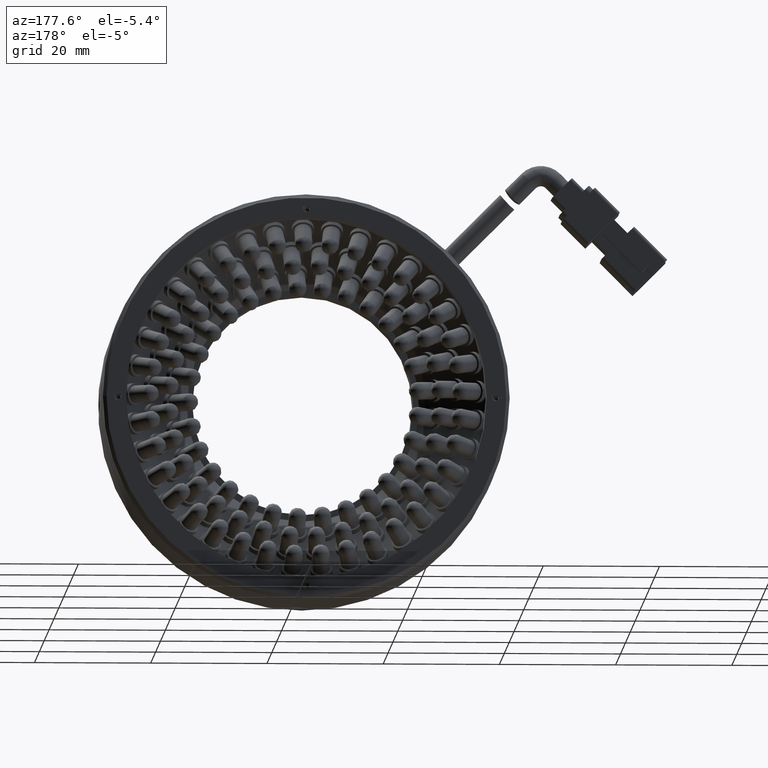
[diagram: clean part render]
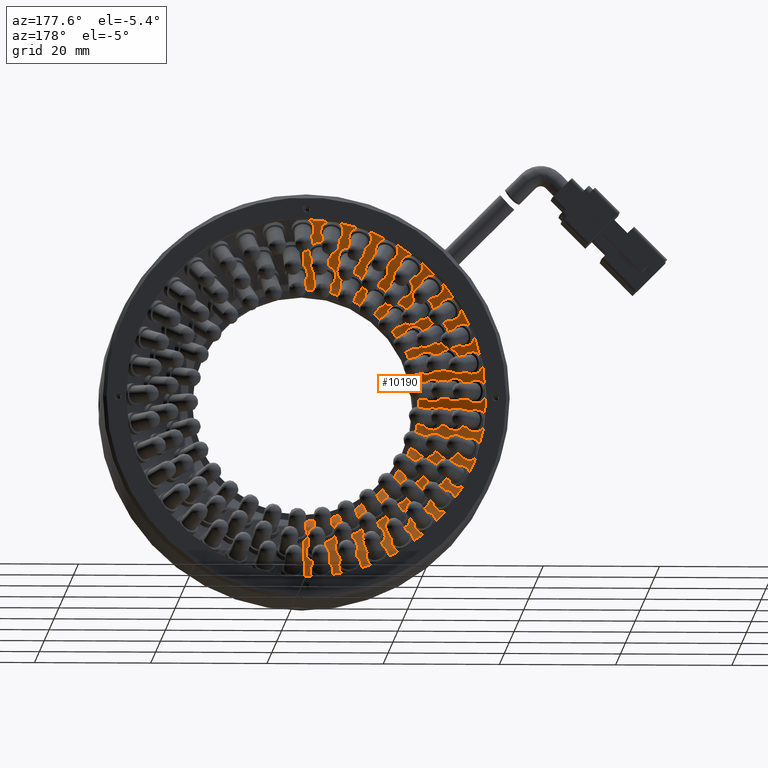
[diagram: same view with one face highlighted and labeled with its STEP entity id]
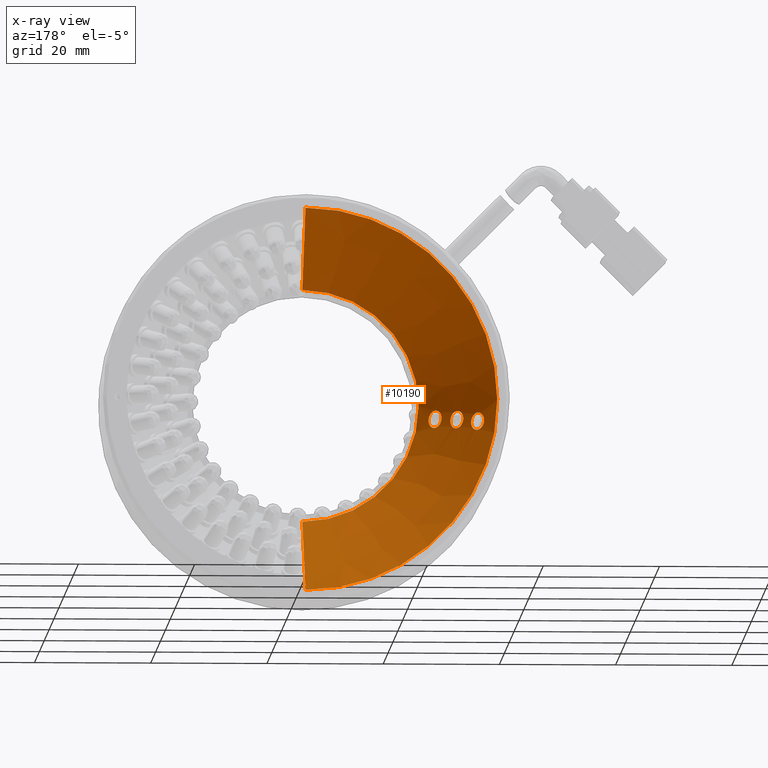
[diagram: x-ray of the same camera — body ghosted, the highlighted face saturated]
A machine part, auxiliary view. The second image highlights one B-rep face of the part: STEP entity #10190.
The next image is the same camera in x-ray: the body ghosted, the highlighted face saturated — about 0% of this face is hidden behind the body in this view.
In plain terms, the highlighted conical surface has half-angle 45 deg.
Its self-contained STEP definition (entity closure, byte-faithful):
#1117 = CARTESIAN_POINT ( 'NONE',  ( -30.09223288798401100, 7.976850201527462000, -2.888808976850003600 ) ) ;
#1168 = FACE_BOUND ( 'NONE', #32541, .T. ) ;
#1710 = CARTESIAN_POINT ( 'NONE',  ( -33.37811794681601900, 11.38641956513504800, -4.121970691507270200 ) ) ;
#1994 = CARTESIAN_POINT ( 'NONE',  ( -31.83871216234416900, 9.956935738828168100, -4.755016390516956000 ) ) ;
#2427 = CARTESIAN_POINT ( 'NONE',  ( -31.40393389580794200, 9.332550256576315200, -3.360580407584973900 ) ) ;
#2659 = CARTESIAN_POINT ( 'NONE',  ( -28.94989392160665200, 6.719374298220328600, -1.391151944788593400 ) ) ;
#2945 = CARTESIAN_POINT ( 'NONE',  ( -30.09223288798401100, 7.976850201527462000, -2.888808976850003600 ) ) ;
#3375 = AXIS2_PLACEMENT_3D ( 'NONE', #29800, #76695, #36542 ) ;
#4058 = CARTESIAN_POINT ( 'NONE',  ( -24.44921119881551200, 2.274871629960953300, -2.015280307594234300 ) ) ;
#4249 = DIRECTION ( 'NONE',  ( 0.0000000000000000000, -1.000000000000000000, 0.0000000000000000000 ) ) ;
#4284 = EDGE_CURVE ( 'NONE', #5049, #68281, #14415, .T. ) ;
#4322 = CARTESIAN_POINT ( 'NONE',  ( -32.66867060039835000, 10.46612088174427100, -1.971797698824531600 ) ) ;
#4337 = CARTESIAN_POINT ( 'NONE',  ( -25.95716323115203700, 3.718217815809340600, -1.150486229931398500 ) ) ;
#4558 = CARTESIAN_POINT ( 'NONE',  ( -26.17263168020944500, 4.162627961578628800, -3.485153052648091200 ) ) ;
#4779 = DIRECTION ( 'NONE',  ( 0.0000000000000000000, -1.000000000000000000, 0.0000000000000000000 ) ) ;
#4842 = CARTESIAN_POINT ( 'NONE',  ( -24.52116903816339600, 2.519247986775215800, -3.415007542213039500 ) ) ;
#5049 = VERTEX_POINT ( 'NONE', #66217 ) ;
#6198 = CARTESIAN_POINT ( 'NONE',  ( -30.01050968042187300, 7.950321185872224000, -3.370755326970311700 ) ) ;
#6494 = CARTESIAN_POINT ( 'NONE',  ( -28.46588625501023300, 6.543867905448771600, -4.231536590790422100 ) ) ;
#7089 = CARTESIAN_POINT ( 'NONE',  ( -2.716071020391490600, 13.44869269134615100, -33.00000000000000700 ) ) ;
#8430 = CARTESIAN_POINT ( 'NONE',  ( -33.25098324583355200, 11.29460363359458500, -4.369993061851015900 ) ) ;
#8738 = CARTESIAN_POINT ( 'NONE',  ( -31.68261638677215300, 9.775874013344935800, -4.585481780741812200 ) ) ;
#9107 = CARTESIAN_POINT ( 'NONE',  ( -27.96455778070088300, 5.861903715666897200, -2.888807865044639400 ) ) ;
#9169 = CARTESIAN_POINT ( 'NONE',  ( -31.45389171925155800, 9.350114011872610900, -3.072333513818881600 ) ) ;
#9383 = CARTESIAN_POINT ( 'NONE',  ( -29.22761975497924800, 6.997207922057613800, -1.400601265777739400 ) ) ;
#10190 = ADVANCED_FACE ( 'NONE', ( #16924, #52475, #1168, #86051 ), #59779, .F. ) ;
#10355 = ORIENTED_EDGE ( 'NONE', *, *, #79427, .T. ) ;
#10808 = CARTESIAN_POINT ( 'NONE',  ( -24.54665320837648300, 2.348978330592371500, -1.747944095574627300 ) ) ;
#11023 = CARTESIAN_POINT ( 'NONE',  ( -26.49751349877059100, 4.360917785284624600, -2.497499267413789700 ) ) ;
#11088 = CARTESIAN_POINT ( 'NONE',  ( -32.86884557506049700, 10.67025964805048200, -2.038232096089959400 ) ) ;
#11103 = CARTESIAN_POINT ( 'NONE',  ( -26.13028914534190500, 3.899245238396602100, -1.305918350379036400 ) ) ;
#11311 = CARTESIAN_POINT ( 'NONE',  ( -25.88142976755217400, 3.923880228889425200, -3.802595145940676600 ) ) ;
#11582 = CARTESIAN_POINT ( 'NONE',  ( -24.37373605373384000, 2.297522132319070200, -2.889108068951709900 ) ) ;
#12668 = EDGE_CURVE ( 'NONE', #46575, #73475, #65890, .T. ) ;
#12936 = CARTESIAN_POINT ( 'NONE',  ( -29.90730625863897200, 7.882010973099663300, -3.637463736922589100 ) ) ;
#13226 = CARTESIAN_POINT ( 'NONE',  ( -28.30007909762012000, 6.355460051159751000, -4.076902001487286300 ) ) ;
#13472 = ORIENTED_EDGE ( 'NONE', *, *, #56004, .T. ) ;
#14415 = B_SPLINE_CURVE_WITH_KNOTS ( 'NONE', 3,
 ( #9107, #42470, #55912, #15855, #62651, #22618, #69370, #29293, #76173, #36050, #82903, #42757, #2659, #49462, #9383, #56199, #16155, #62932, #22893, #69668, #29570, #76462, #36327, #83190, #43022, #2945 ),
 .UNSPECIFIED., .F., .F.,
 ( 4, 2, 2, 2, 2, 2, 2, 2, 2, 2, 2, 2, 4 ),
 ( 0.004689184327643776600, 0.004982258625576380500, 0.005275332923508984300, 0.005568407221441588200, 0.005861481519374192100, 0.006447630115239393700, 0.007033778711104596300, 0.007326853009037197600, 0.007619927306969797100, 0.007913001604902396600, 0.008206075902834997900, 0.008792224498700203900, 0.009378373094565408200 ),
 .UNSPECIFIED. ) ;
#15170 = CARTESIAN_POINT ( 'NONE',  ( -33.03770556966600200, 11.12491966984790400, -4.653224821114847900 ) ) ;
#15461 = CARTESIAN_POINT ( 'NONE',  ( -31.48322650742131800, 9.522131759474037300, -4.212564623681377200 ) ) ;
#15855 = CARTESIAN_POINT ( 'NONE',  ( -28.01908326367941600, 5.874886798443166700, -2.501664204160788600 ) ) ;
#15912 = CARTESIAN_POINT ( 'NONE',  ( -31.54169450870904300, 9.409463013717223500, -2.796130526269787500 ) ) ;
#16155 = CARTESIAN_POINT ( 'NONE',  ( -29.42814202739572600, 7.200999147125463300, -1.467076150657324200 ) ) ;
#16653 = EDGE_LOOP ( 'NONE', ( #32848, #81447 ) ) ;
#16924 = FACE_BOUND ( 'NONE', #45103, .T. ) ;
#17604 = CARTESIAN_POINT ( 'NONE',  ( -24.67742984688036900, 2.461643009922632100, -1.507956543181124600 ) ) ;
#17784 = CIRCLE ( 'NONE', #3375, 33.00000000000000000 ) ;
#17878 = CARTESIAN_POINT ( 'NONE',  ( -33.05541550518000100, 10.86479568739612700, -2.160092470270941000 ) ) ;
#17894 = CARTESIAN_POINT ( 'NONE',  ( -26.32452407231837600, 4.109419223406105100, -1.577599851970052900 ) ) ;
#18092 = CARTESIAN_POINT ( 'NONE',  ( -25.46800741940171900, 3.547881985770746200, -3.990304007584768000 ) ) ;
#18393 = CARTESIAN_POINT ( 'NONE',  ( -24.36981795031816800, 2.245991863775949900, -2.497497769189368700 ) ) ;
#19208 = CARTESIAN_POINT ( 'NONE',  ( -2.716071020391494600, 13.44869269134614600, 33.00000000000000000 ) ) ;
#19708 = CARTESIAN_POINT ( 'NONE',  ( -29.76852888598568500, 7.777388163801131100, -3.876581687967640900 ) ) ;
#19997 = CARTESIAN_POINT ( 'NONE',  ( -28.11756223280062300, 6.133512187233510100, -3.806514765392610100 ) ) ;
#20620 = CARTESIAN_POINT ( 'NONE',  ( -2.716071020391490600, 13.44869269134614600, -33.00000000000000000 ) ) ;
#21059 = ORIENTED_EDGE ( 'NONE', *, *, #32762, .F. ) ;
#21182 = VECTOR ( 'NONE', #39618, 999.9999999999998900 ) ;
#21914 = CARTESIAN_POINT ( 'NONE',  ( -32.64133001116720600, 10.77441666875718300, -4.912981299983012900 ) ) ;
#22220 = CARTESIAN_POINT ( 'NONE',  ( -31.38619482812978500, 9.350408876973169500, -3.656801335355827700 ) ) ;
#22618 = CARTESIAN_POINT ( 'NONE',  ( -28.10567726537878000, 5.935465366437992600, -2.225339834273584800 ) ) ;
#22673 = CARTESIAN_POINT ( 'NONE',  ( -31.66288662371357500, 9.507258990095312600, -2.547418979825386600 ) ) ;
#22893 = CARTESIAN_POINT ( 'NONE',  ( -29.61538702772243800, 7.394853228784978000, -1.589005757616505300 ) ) ;
#24310 = CARTESIAN_POINT ( 'NONE',  ( -24.95243994932467800, 2.716665163038003400, -1.188735715504184400 ) ) ;
#24529 = CARTESIAN_POINT ( 'NONE',  ( -26.49235374372642900, 4.366108627309952100, -2.596330527924044100 ) ) ;
#24592 = CARTESIAN_POINT ( 'NONE',  ( -33.21794150139388100, 11.03938388139246400, -2.330372589065691900 ) ) ;
#24602 = CARTESIAN_POINT ( 'NONE',  ( -26.48899940382902000, 4.314010037575357600, -2.105378886074647000 ) ) ;
#24824 = CARTESIAN_POINT ( 'NONE',  ( -25.18893267097128700, 3.271389174592974400, -3.980705248420320300 ) ) ;
#24826 = VERTEX_POINT ( 'NONE', #66996 ) ;
#26436 = CARTESIAN_POINT ( 'NONE',  ( -29.47841531595618000, 7.537529216597238100, -4.194157209696227200 ) ) ;
#26727 = CARTESIAN_POINT ( 'NONE',  ( -27.96884440991518200, 5.913054303930654700, -3.280442657478248600 ) ) ;
#27403 = EDGE_CURVE ( 'NONE', #82842, #62072, #70913, .T. ) ;
#28239 = EDGE_CURVE ( 'NONE', #82842, #79214, #38955, .T. ) ;
#28365 = CARTESIAN_POINT ( 'NONE',  ( -33.52095258481815400, 11.45822525294419200, -3.558109048436958900 ) ) ;
#28656 = CARTESIAN_POINT ( 'NONE',  ( -32.28861925230100400, 10.43302000739202000, -4.952212459358531000 ) ) ;
#29293 = CARTESIAN_POINT ( 'NONE',  ( -28.22560439056324800, 6.034543310092948000, -1.976512491367817100 ) ) ;
#29355 = CARTESIAN_POINT ( 'NONE',  ( -31.86659738957584100, 9.686567416290762000, -2.263077709976834200 ) ) ;
#29570 = CARTESIAN_POINT ( 'NONE',  ( -29.77883539690149200, 7.568504325954476600, -1.759373894676338600 ) ) ;
#29800 = CARTESIAN_POINT ( 'NONE',  ( -2.716071020391494600, 13.44869269134615100, 0.0000000000000000000 ) ) ;
#30719 = CARTESIAN_POINT ( 'NONE',  ( -24.37547834544265200, 2.240297365366501000, -2.398721525198301800 ) ) ;
#30981 = CARTESIAN_POINT ( 'NONE',  ( -25.35197058306175000, 3.106646915686858400, -0.9994896512752514700 ) ) ;
#31193 = CARTESIAN_POINT ( 'NONE',  ( -26.44189801283231500, 4.349027118801107200, -2.884536115081206100 ) ) ;
#31253 = CARTESIAN_POINT ( 'NONE',  ( -33.42970014969087300, 11.28068057494742000, -2.704729350631603200 ) ) ;
#31264 = CARTESIAN_POINT ( 'NONE',  ( -26.49751349877059100, 4.360917785284624600, -2.497499267413789700 ) ) ;
#31282 = CARTESIAN_POINT ( 'NONE',  ( -2.716071020391494600, 0.4486926913459983200, 20.00000000000001100 ) ) ;
#31477 = CARTESIAN_POINT ( 'NONE',  ( -24.99101462764855000, 3.064966248454909200, -3.914511835946361500 ) ) ;
#31983 = AXIS2_PLACEMENT_3D ( 'NONE', #67610, #48292, #75299 ) ;
#32132 = EDGE_CURVE ( 'NONE', #37473, #62016, #71731, .T. ) ;
#32541 = EDGE_LOOP ( 'NONE', ( #49852, #41802 ) ) ;
#32762 = EDGE_CURVE ( 'NONE', #79214, #37473, #17784, .T. ) ;
#32830 = CARTESIAN_POINT ( 'NONE',  ( -30.09223288798401100, 7.976850201527462000, -2.888808976850003600 ) ) ;
#32848 = ORIENTED_EDGE ( 'NONE', *, *, #71489, .T. ) ;
#33144 = CARTESIAN_POINT ( 'NONE',  ( -29.06601132826993000, 7.160498173152793900, -4.381977731557803700 ) ) ;
#33429 = CARTESIAN_POINT ( 'NONE',  ( -27.96455778070088300, 5.861903715666897200, -2.888807865044639400 ) ) ;
#35103 = CARTESIAN_POINT ( 'NONE',  ( -33.50840356783847800, 11.45706138274978500, -3.655218195600902700 ) ) ;
#35388 = CARTESIAN_POINT ( 'NONE',  ( -32.08485847575766300, 10.22417826652174700, -4.904480023713950300 ) ) ;
#35854 = AXIS2_PLACEMENT_3D ( 'NONE', #44908, #4779, #51646 ) ;
#36050 = CARTESIAN_POINT ( 'NONE',  ( -28.42767393724751600, 6.215501190854329400, -1.692036362559110400 ) ) ;
#36118 = CARTESIAN_POINT ( 'NONE',  ( -32.24993204006149500, 10.05019823280965200, -2.001800619429759300 ) ) ;
#36327 = CARTESIAN_POINT ( 'NONE',  ( -29.99248696055222400, 7.807880282528584500, -2.133910360436776200 ) ) ;
#36542 = DIRECTION ( 'NONE',  ( 0.0000000000000000000, -1.051347561198065000E-016, -1.000000000000000000 ) ) ;
#37473 = VERTEX_POINT ( 'NONE', #79529 ) ;
#37737 = CARTESIAN_POINT ( 'NONE',  ( -25.62969088126097700, 3.384509009095337400, -1.008936631138241900 ) ) ;
#37844 = ORIENTED_EDGE ( 'NONE', *, *, #80315, .T. ) ;
#37949 = CARTESIAN_POINT ( 'NONE',  ( -26.35048835111996400, 4.293285388206882700, -3.160337429953204300 ) ) ;
#38006 = CARTESIAN_POINT ( 'NONE',  ( -33.53748202971131300, 11.44158440760366200, -3.261747144112048200 ) ) ;
#38249 = CARTESIAN_POINT ( 'NONE',  ( -24.80950095616656300, 2.865340244422933200, -3.793204552890478100 ) ) ;
#38955 = LINE ( 'NONE', #19208, #21182 ) ;
#39564 = CARTESIAN_POINT ( 'NONE',  ( -30.08704878579663200, 7.982065453838874400, -2.987634170897629300 ) ) ;
#39618 = DIRECTION ( 'NONE',  ( 0.0000000000000000000, 0.7071067811865515700, 0.7071067811865435800 ) ) ;
#39738 = VECTOR ( 'NONE', #47762, 999.9999999999998900 ) ;
#39849 = CARTESIAN_POINT ( 'NONE',  ( -28.78711698213827600, 6.883844376190436000, -4.372398271905630900 ) ) ;
#41802 = ORIENTED_EDGE ( 'NONE', *, *, #12668, .T. ) ;
#41806 = CARTESIAN_POINT ( 'NONE',  ( -33.44336522947413200, 11.42755711377953500, -3.941097749958742700 ) ) ;
#42096 = CARTESIAN_POINT ( 'NONE',  ( -31.89744508146140900, 10.02246797971766900, -4.801698555922583500 ) ) ;
#42470 = CARTESIAN_POINT ( 'NONE',  ( -27.97017331891063200, 5.856254434929434500, -2.790030023461476500 ) ) ;
#42535 = CARTESIAN_POINT ( 'NONE',  ( -31.41639688171467200, 9.333800737872010700, -3.263461307679371700 ) ) ;
#42757 = CARTESIAN_POINT ( 'NONE',  ( -28.80923263624179100, 6.580914022070942300, -1.430618923767120300 ) ) ;
#42811 = CARTESIAN_POINT ( 'NONE',  ( -32.59865100116816400, 10.39561926039739600, -1.962102465250005900 ) ) ;
#42985 = VERTEX_POINT ( 'NONE', #54661 ) ;
#43022 = CARTESIAN_POINT ( 'NONE',  ( -30.10260110217440800, 7.966419687030017000, -2.691158401637991000 ) ) ;
#44018 = EDGE_LOOP ( 'NONE', ( #71165, #10355, #45015, #21059, #62370 ) ) ;
#44169 = CARTESIAN_POINT ( 'NONE',  ( -24.42429051912432300, 2.259032136276597000, -2.110335868094430200 ) ) ;
#44372 = CARTESIAN_POINT ( 'NONE',  ( -2.716071020391494600, 0.4486926913459983200, 0.0000000000000000000 ) ) ;
#44471 = CARTESIAN_POINT ( 'NONE',  ( -25.83045850150775600, 3.588059454752991600, -1.075440272904947700 ) ) ;
#44608 = CARTESIAN_POINT ( 'NONE',  ( -2.716071020391494600, 13.44869269134615100, 33.00000000000000700 ) ) ;
#44694 = CARTESIAN_POINT ( 'NONE',  ( -26.22326604847269800, 4.201538436257470400, -3.408364970008328500 ) ) ;
#44801 = EDGE_CURVE ( 'NONE', #73475, #46575, #46332, .T. ) ;
#44908 = CARTESIAN_POINT ( 'NONE',  ( -2.716071020391494600, 13.44869269134615100, 0.0000000000000000000 ) ) ;
#44969 = CARTESIAN_POINT ( 'NONE',  ( -24.65394839107752000, 2.683752291482336200, -3.623700201135526400 ) ) ;
#45015 = ORIENTED_EDGE ( 'NONE', *, *, #32132, .F. ) ;
#45103 = EDGE_LOOP ( 'NONE', ( #37844, #13472 ) ) ;
#46307 = CARTESIAN_POINT ( 'NONE',  ( -30.03671900562321900, 7.964861330365146800, -3.275844505291206900 ) ) ;
#46332 = B_SPLINE_CURVE_WITH_KNOTS ( 'NONE', 3,
 ( #68397, #28365, #35103, #81967, #41806, #1710, #48497, #8430, #55250, #15170, #61996, #21914, #68695, #28656, #75508, #35388, #82268, #42096, #1994, #48797, #8738, #55530, #15461, #62292, #22220, #68996 ),
 .UNSPECIFIED., .F., .F.,
 ( 4, 2, 2, 2, 2, 2, 2, 2, 2, 2, 2, 2, 4 ),
 ( 0.0000000000000000000, 0.0002930677184465275800, 0.0005861354368930551500, 0.0008792031553395827300, 0.001172270873786110300, 0.001758406310679151600, 0.002344541747572192900, 0.002637609466018713600, 0.002930677184465234300, 0.003223744902911755100, 0.003516812621358276300, 0.004102948058251315600, 0.004689083495144353600 ),
 .UNSPECIFIED. ) ;
#46575 = VERTEX_POINT ( 'NONE', #56403 ) ;
#46592 = CARTESIAN_POINT ( 'NONE',  ( -28.58905846973035700, 6.677570885727120300, -4.306191921351485900 ) ) ;
#46999 = B_SPLINE_CURVE_WITH_KNOTS ( 'NONE', 3,
 ( #32830, #39564, #86476, #46307, #6198, #53031, #12936, #59755, #19708, #66459, #26436, #73270, #33144, #80055, #39849, #86775, #46592, #6494, #53319, #13226, #60055, #19997, #66757, #26727, #73567, #33429 ),
 .UNSPECIFIED., .F., .F.,
 ( 4, 2, 2, 2, 2, 2, 2, 2, 2, 2, 2, 2, 4 ),
 ( 0.0000000000000000000, 0.0002930740204777339800, 0.0005861480409554679500, 0.0008792220614332018700, 0.001172296081910935900, 0.001758444122866402200, 0.002344592163821868300, 0.002637666184299605400, 0.002930740204777342500, 0.003223814225255079500, 0.003516888245732816600, 0.004103036286688296400, 0.004689184327643776600 ),
 .UNSPECIFIED. ) ;
#47762 = DIRECTION ( 'NONE',  ( 8.659560562354884800E-017, 0.7071067811865515700, -0.7071067811865435800 ) ) ;
#48144 = B_SPLINE_CURVE_WITH_KNOTS ( 'NONE', 3,
 ( #70545, #30719, #84347, #44169, #4058, #50919, #10808, #57628, #17604, #64344, #24310, #71114, #30981, #77921, #37737, #84635, #44471, #4337, #51209, #11103, #57905, #17894, #64630, #24602, #71400, #31264 ),
 .UNSPECIFIED., .F., .F.,
 ( 4, 2, 2, 2, 2, 2, 2, 2, 2, 2, 2, 2, 4 ),
 ( 0.004689342140114963900, 0.004982426383969165400, 0.005275510627823367700, 0.005568594871677569200, 0.005861679115531771500, 0.006447847603240170100, 0.007034016090948568700, 0.007327100334802771900, 0.007620184578656975100, 0.007913268822511178300, 0.008206353066365381500, 0.008792521554073791400, 0.009378690041782199500 ),
 .UNSPECIFIED. ) ;
#48292 = DIRECTION ( 'NONE',  ( -0.0000000000000000000, 1.000000000000000000, 0.0000000000000000000 ) ) ;
#48497 = CARTESIAN_POINT ( 'NONE',  ( -33.33960190663746200, 11.35982591810994800, -4.207730450116234700 ) ) ;
#48797 = CARTESIAN_POINT ( 'NONE',  ( -31.73165729731529400, 9.834024566112598000, -4.647093995641291100 ) ) ;
#49234 = CARTESIAN_POINT ( 'NONE',  ( -31.39802087014657100, 9.338503133164820700, -3.459320768641271500 ) ) ;
#49462 = CARTESIAN_POINT ( 'NONE',  ( -29.15756188453504200, 6.926740690362270100, -1.390899217639858200 ) ) ;
#49771 = AXIS2_PLACEMENT_3D ( 'NONE', #44372, #4249, #51117 ) ;
#49852 = ORIENTED_EDGE ( 'NONE', *, *, #44801, .T. ) ;
#50919 = CARTESIAN_POINT ( 'NONE',  ( -24.51052604647137700, 2.319976694560864000, -1.833969394027679100 ) ) ;
#51117 = DIRECTION ( 'NONE',  ( 0.0000000000000000000, 8.673617379884030500E-017, -1.000000000000000000 ) ) ;
#51200 = CARTESIAN_POINT ( 'NONE',  ( -32.80359125220213900, 10.60327186002500200, -2.009971079422532700 ) ) ;
#51209 = CARTESIAN_POINT ( 'NONE',  ( -26.01815233225255900, 3.781463538590523800, -1.197422366615450200 ) ) ;
#51413 = CARTESIAN_POINT ( 'NONE',  ( -26.00950667302417300, 4.032340823958555200, -3.691548440535417500 ) ) ;
#51646 = DIRECTION ( 'NONE',  ( 0.0000000000000000000, -1.051347561198065000E-016, -1.000000000000000000 ) ) ;
#51710 = CARTESIAN_POINT ( 'NONE',  ( -24.45547532853362700, 2.429129200724346600, -3.250837070625607300 ) ) ;
#52475 = FACE_BOUND ( 'NONE', #16653, .T. ) ;
#53031 = CARTESIAN_POINT ( 'NONE',  ( -29.94565873127809800, 7.908774276029609100, -3.551680886866948900 ) ) ;
#53319 = CARTESIAN_POINT ( 'NONE',  ( -28.40715334708642100, 6.478341933624960800, -4.184845606348783800 ) ) ;
#54661 = CARTESIAN_POINT ( 'NONE',  ( -26.49751349877059100, 4.360917785284624600, -2.497499267413789700 ) ) ;
#55076 = CARTESIAN_POINT ( 'NONE',  ( -2.716071020391491100, 0.4486926913459983200, -20.00000000000001100 ) ) ;
#55250 = CARTESIAN_POINT ( 'NONE',  ( -33.20044632161772600, 11.25559628731189900, -4.446791202640015200 ) ) ;
#55530 = CARTESIAN_POINT ( 'NONE',  ( -31.54927324431512000, 9.611928553604162300, -4.376767390991610700 ) ) ;
#55912 = CARTESIAN_POINT ( 'NONE',  ( -27.98230676668823900, 5.857841108231871100, -2.692872088767890300 ) ) ;
#55979 = CARTESIAN_POINT ( 'NONE',  ( -31.47929963221166700, 9.365454925114827100, -2.977333648339256300 ) ) ;
#56004 = EDGE_CURVE ( 'NONE', #24826, #42985, #48144, .T. ) ;
#56199 = CARTESIAN_POINT ( 'NONE',  ( -29.36273290535496400, 7.134166090478451800, -1.438798172445934400 ) ) ;
#56403 = CARTESIAN_POINT ( 'NONE',  ( -31.39802087014657100, 9.338503133164820700, -3.459320768641271500 ) ) ;
#57546 = LINE ( 'NONE', #20620, #39738 ) ;
#57628 = CARTESIAN_POINT ( 'NONE',  ( -24.62990091865398800, 2.419612432470497500, -1.585083470354783800 ) ) ;
#57892 = CARTESIAN_POINT ( 'NONE',  ( -32.99485252839415500, 10.80110815202430000, -2.113198710938537500 ) ) ;
#57905 = CARTESIAN_POINT ( 'NONE',  ( -26.18217320979669800, 3.954532359199630400, -1.367852594577402500 ) ) ;
#58131 = CARTESIAN_POINT ( 'NONE',  ( -25.61206503944994100, 3.682922923897500800, -3.951209711493576500 ) ) ;
#58405 = CARTESIAN_POINT ( 'NONE',  ( -33.52646239689207900, 11.45267830740728400, -3.459321798819248200 ) ) ;
#58411 = CARTESIAN_POINT ( 'NONE',  ( -24.35849717397845300, 2.257380846601792600, -2.695050014449291700 ) ) ;
#59755 = CARTESIAN_POINT ( 'NONE',  ( -29.81895800242729800, 7.816506824453530700, -3.799767352674809500 ) ) ;
#59779 = CONICAL_SURFACE ( 'NONE', #31983, 33.00000000000000000, 0.7853981633974426200 ) ;
#60055 = CARTESIAN_POINT ( 'NONE',  ( -28.25101924455412600, 6.297332740483542900, -4.015277208791503400 ) ) ;
#61996 = CARTESIAN_POINT ( 'NONE',  ( -32.91001747395823400, 11.01606169976747300, -4.764307066195859100 ) ) ;
#62016 = VERTEX_POINT ( 'NONE', #7089 ) ;
#62072 = VERTEX_POINT ( 'NONE', #55076 ) ;
#62292 = CARTESIAN_POINT ( 'NONE',  ( -31.40127886739067300, 9.390700894051661900, -3.850813661478162100 ) ) ;
#62370 = ORIENTED_EDGE ( 'NONE', *, *, #28239, .F. ) ;
#62651 = CARTESIAN_POINT ( 'NONE',  ( -28.04409788792290600, 5.890628835382852200, -2.406622325281271700 ) ) ;
#62713 = CARTESIAN_POINT ( 'NONE',  ( -31.57840938209541200, 9.437869162553740300, -2.710162073757857600 ) ) ;
#62932 = CARTESIAN_POINT ( 'NONE',  ( -29.55456539434742100, 7.331431839673603800, -1.542087243733474300 ) ) ;
#64344 = CARTESIAN_POINT ( 'NONE',  ( -24.83108706907585600, 2.601443489593826500, -1.300524490698876700 ) ) ;
#64620 = CARTESIAN_POINT ( 'NONE',  ( -33.16659305451251100, 10.98355553334837100, -2.268492541284835400 ) ) ;
#64630 = CARTESIAN_POINT ( 'NONE',  ( -26.39686758757648000, 4.192851270175975900, -1.742501851352672000 ) ) ;
#64833 = CARTESIAN_POINT ( 'NONE',  ( -25.25889069463905300, 3.341963317403056500, -3.990397044369723600 ) ) ;
#65890 = B_SPLINE_CURVE_WITH_KNOTS ( 'NONE', 3,
 ( #49234, #2427, #42535, #9169, #55979, #15912, #62713, #22673, #69434, #29355, #76223, #36118, #82959, #42811, #4322, #51200, #11088, #57892, #17878, #64620, #24592, #71388, #31253, #78196, #38006, #84905 ),
 .UNSPECIFIED., .F., .F.,
 ( 4, 2, 2, 2, 2, 2, 2, 2, 2, 2, 2, 2, 4 ),
 ( 0.004689083495144353600, 0.004982151444206462200, 0.005275219393268570700, 0.005568287342330679300, 0.005861355291392787900, 0.006447491189517016300, 0.007033627087641245600, 0.007326695036703358500, 0.007619762985765471400, 0.007912830934827582600, 0.008205898883889695500, 0.008792034782013923000, 0.009378170680138147100 ),
 .UNSPECIFIED. ) ;
#66217 = CARTESIAN_POINT ( 'NONE',  ( -27.96455778070088300, 5.861903715666897200, -2.888807865044639400 ) ) ;
#66459 = CARTESIAN_POINT ( 'NONE',  ( -29.60603472380911000, 7.646457897672905600, -4.083056202841649300 ) ) ;
#66757 = CARTESIAN_POINT ( 'NONE',  ( -28.05137181699154100, 6.043878077482676600, -3.642280062222721200 ) ) ;
#66996 = CARTESIAN_POINT ( 'NONE',  ( -24.36981795031816800, 2.245991863775949900, -2.497497769189368700 ) ) ;
#67610 = CARTESIAN_POINT ( 'NONE',  ( -2.716071020391494600, 13.44869269134614600, 0.0000000000000000000 ) ) ;
#68281 = VERTEX_POINT ( 'NONE', #1117 ) ;
#68397 = CARTESIAN_POINT ( 'NONE',  ( -33.52646239689207900, 11.45267830740728400, -3.459321798819248200 ) ) ;
#68695 = CARTESIAN_POINT ( 'NONE',  ( -32.49756335515410700, 10.63908910240122700, -4.952098552430085100 ) ) ;
#68996 = CARTESIAN_POINT ( 'NONE',  ( -31.39802087014657100, 9.338503133164820700, -3.459320768641271500 ) ) ;
#69370 = CARTESIAN_POINT ( 'NONE',  ( -28.14197251523002300, 5.964297069803323300, -2.139332251036381000 ) ) ;
#69434 = CARTESIAN_POINT ( 'NONE',  ( -31.71106438712465400, 9.548639603335534100, -2.470347630656525100 ) ) ;
#69668 = CARTESIAN_POINT ( 'NONE',  ( -29.72715424512901400, 7.513012766685523800, -1.697462051795112900 ) ) ;
#70545 = CARTESIAN_POINT ( 'NONE',  ( -24.36981795031816800, 2.245991863775949900, -2.497497769189368700 ) ) ;
#70913 = CIRCLE ( 'NONE', #49771, 20.00000000000001100 ) ;
#71114 = CARTESIAN_POINT ( 'NONE',  ( -25.21151741892331800, 2.967973283796356400, -1.038983867632457400 ) ) ;
#71165 = ORIENTED_EDGE ( 'NONE', *, *, #27403, .T. ) ;
#71333 = CARTESIAN_POINT ( 'NONE',  ( -26.48008095919268700, 4.364661294156624300, -2.693476409665842100 ) ) ;
#71388 = CARTESIAN_POINT ( 'NONE',  ( -33.35857245996034200, 11.19599761252939500, -2.539935526342817200 ) ) ;
#71400 = CARTESIAN_POINT ( 'NONE',  ( -26.50783302153796200, 4.350536088478531100, -2.299836503535559500 ) ) ;
#71489 = EDGE_CURVE ( 'NONE', #68281, #5049, #46999, .T. ) ;
#71630 = CARTESIAN_POINT ( 'NONE',  ( -25.05518007358076800, 3.133054538943564000, -3.942655122749678200 ) ) ;
#71731 = CIRCLE ( 'NONE', #35854, 33.00000000000000000 ) ;
#73270 = CARTESIAN_POINT ( 'NONE',  ( -29.20978600588955500, 7.295822147131579200, -4.342854923332189400 ) ) ;
#73475 = VERTEX_POINT ( 'NONE', #58405 ) ;
#73567 = CARTESIAN_POINT ( 'NONE',  ( -27.95332671491391400, 5.873202266445422200, -3.086363361184057300 ) ) ;
#75299 = DIRECTION ( 'NONE',  ( 0.0000000000000000000, 0.0000000000000000000, 1.000000000000000000 ) ) ;
#75508 = CARTESIAN_POINT ( 'NONE',  ( -32.21867753442303700, 10.36244029600416500, -4.942526104877815700 ) ) ;
#76173 = CARTESIAN_POINT ( 'NONE',  ( -28.27335295307484100, 6.076356030270624800, -1.899405503200367800 ) ) ;
#76223 = CARTESIAN_POINT ( 'NONE',  ( -31.98914546368681400, 9.800598456485412100, -2.151396479206739700 ) ) ;
#76327 = B_SPLINE_CURVE_WITH_KNOTS ( 'NONE', 3,
 ( #11023, #24529, #71333, #31193, #78138, #37949, #84849, #44694, #4558, #51413, #11311, #58131, #18092, #64833, #24824, #71630, #31477, #78410, #38249, #85145, #44969, #4842, #51710, #11582, #58411, #18393 ),
 .UNSPECIFIED., .F., .F.,
 ( 4, 2, 2, 2, 2, 2, 2, 2, 2, 2, 2, 2, 4 ),
 ( 0.0000000000000000000, 0.0002930838837571808000, 0.0005861677675143616000, 0.0008792516512715425000, 0.001172335535028723200, 0.001758503302543091700, 0.002344671070057459400, 0.002637754953814647500, 0.002930838837571836000, 0.003223922721329023600, 0.003517006605086212100, 0.004103174372600587800, 0.004689342140114963900 ),
 .UNSPECIFIED. ) ;
#76462 = CARTESIAN_POINT ( 'NONE',  ( -29.92055609116355400, 7.724019090198884100, -1.969045101210438900 ) ) ;
#76695 = DIRECTION ( 'NONE',  ( 0.0000000000000000000, -1.000000000000000000, 0.0000000000000000000 ) ) ;
#77921 = CARTESIAN_POINT ( 'NONE',  ( -25.55960125826056700, 3.314066646799193700, -0.9992307690275282800 ) ) ;
#78138 = CARTESIAN_POINT ( 'NONE',  ( -26.41559340952226600, 4.334579906286407400, -2.979439700170547900 ) ) ;
#78196 = CARTESIAN_POINT ( 'NONE',  ( -33.51961998943672700, 11.40408856987448200, -3.067409852924995100 ) ) ;
#78410 = CARTESIAN_POINT ( 'NONE',  ( -24.86807297406931400, 2.931022768088019900, -3.839877749889348400 ) ) ;
#79214 = VERTEX_POINT ( 'NONE', #44608 ) ;
#79427 = EDGE_CURVE ( 'NONE', #62072, #62016, #57546, .T. ) ;
#79529 = CARTESIAN_POINT ( 'NONE',  ( -35.71607102039149600, 13.44869269134615100, 4.049993997748621200E-015 ) ) ;
#80055 = CARTESIAN_POINT ( 'NONE',  ( -28.85706066666757200, 6.954426081459327900, -4.382088041531965000 ) ) ;
#80315 = EDGE_CURVE ( 'NONE', #42985, #24826, #76327, .T. ) ;
#81447 = ORIENTED_EDGE ( 'NONE', *, *, #4284, .T. ) ;
#81967 = CARTESIAN_POINT ( 'NONE',  ( -33.46980707908835500, 11.44185710167179200, -3.846218073052764600 ) ) ;
#82268 = CARTESIAN_POINT ( 'NONE',  ( -32.02061594168689900, 10.15617139596161200, -4.876336150010611300 ) ) ;
#82842 = VERTEX_POINT ( 'NONE', #31282 ) ;
#82903 = CARTESIAN_POINT ( 'NONE',  ( -28.54948730193893900, 6.330268580938591700, -1.580296076989736700 ) ) ;
#82959 = CARTESIAN_POINT ( 'NONE',  ( -32.39090638013429000, 10.18833984316764200, -1.962356982055978700 ) ) ;
#83190 = CARTESIAN_POINT ( 'NONE',  ( -30.08398288791823600, 7.929686052062361800, -2.496735953307901200 ) ) ;
#84347 = CARTESIAN_POINT ( 'NONE',  ( -24.38760917455244500, 2.241887513611481500, -2.301560160456393800 ) ) ;
#84635 = CARTESIAN_POINT ( 'NONE',  ( -25.76494137189920500, 3.521332085800508200, -1.047149577888178300 ) ) ;
#84849 = CARTESIAN_POINT ( 'NONE',  ( -26.31197774011261000, 4.266679721737610000, -3.246102452109251900 ) ) ;
#84905 = CARTESIAN_POINT ( 'NONE',  ( -33.52646239689207900, 11.45267830740728400, -3.459321798819248200 ) ) ;
#85145 = CARTESIAN_POINT ( 'NONE',  ( -24.70279705031742900, 2.742091085321706900, -3.685301890713614800 ) ) ;
#86051 = FACE_OUTER_BOUND ( 'NONE', #44018, .T. ) ;
#86476 = CARTESIAN_POINT ( 'NONE',  ( -30.07479228649301100, 7.980602574346429300, -3.084778675087337200 ) ) ;
#86775 = CARTESIAN_POINT ( 'NONE',  ( -28.65329934544047300, 6.745579915739334400, -4.334342406142083000 ) ) ;